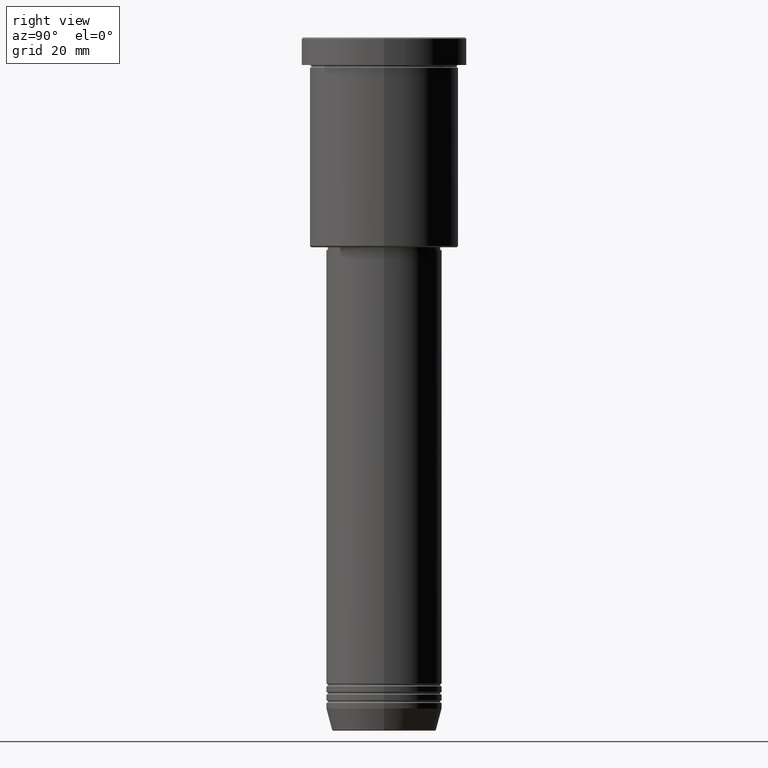
[diagram: clean part render]
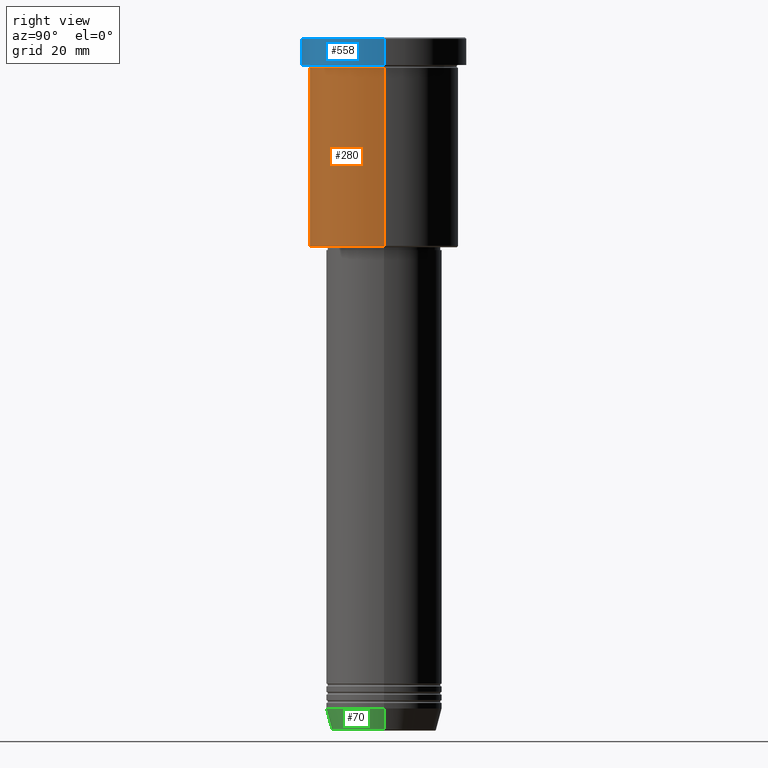
[diagram: same view with three faces highlighted in distinct colors, each labeled with its STEP entity id]
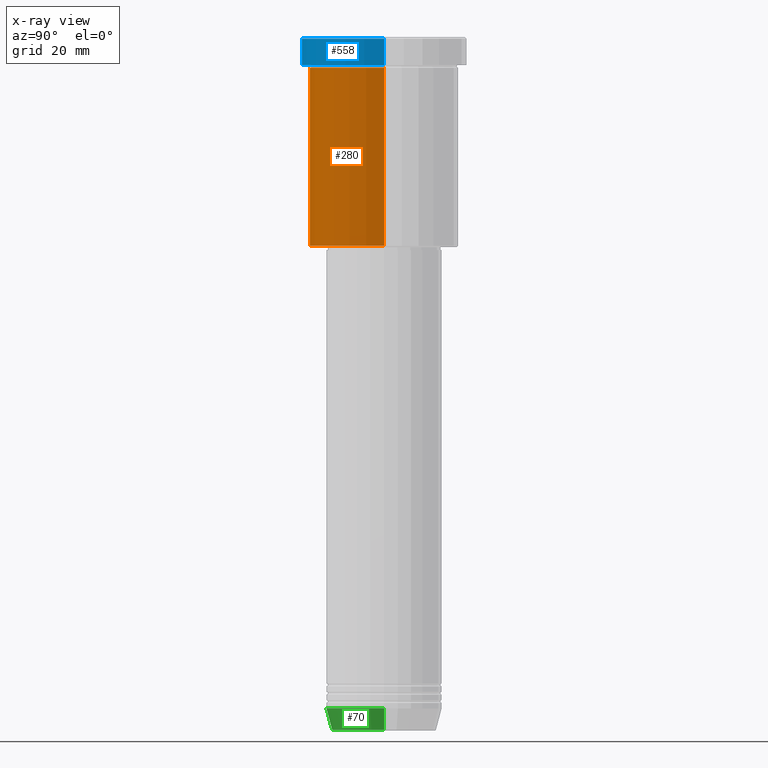
[diagram: x-ray of the same camera — body ghosted, the three highlighted faces saturated]
A machine part, right view with three faces highlighted in distinct colors.
The next image is the same camera in x-ray (body ghosted, the three faces saturated) — at least one of them is partly hidden behind the body in this view.
Their STEP definitions:

[orange] entity #280 — the highlighted cylindrical surface (partial cylindrical patch) has radius 27 mm, axis along (-0, -0, 1).
#3 = CARTESIAN_POINT ( 'NONE',  ( 0.000000000000000000, 0.000000000000000000, -10.99999999999999289 ) ) ;
#6 = DIRECTION ( 'NONE',  ( -0.000000000000000000, -0.000000000000000000, 1.000000000000000000 ) ) ;
#21 = VERTEX_POINT ( 'NONE', #787 ) ;
#26 = DIRECTION ( 'NONE',  ( -0.000000000000000000, -0.000000000000000000, 1.000000000000000000 ) ) ;
#69 = VERTEX_POINT ( 'NONE', #887 ) ;
#84 = LINE ( 'NONE', #997, #155 ) ;
#155 = VECTOR ( 'NONE', #256, 1000.000000000000000 ) ;
#172 = CARTESIAN_POINT ( 'NONE',  ( 27.00000000000000355, 0.000000000000000000, 0.000000000000000000 ) ) ;
#199 = CIRCLE ( 'NONE', #545, 27.00000000000000355 ) ;
#211 = ORIENTED_EDGE ( 'NONE', *, *, #956, .F. ) ;
#256 = DIRECTION ( 'NONE',  ( -0.000000000000000000, -0.000000000000000000, 1.000000000000000000 ) ) ;
#280 = ADVANCED_FACE ( 'NONE', ( #844 ), #1116, .T. ) ;
#285 = DIRECTION ( 'NONE',  ( -0.000000000000000000, -0.000000000000000000, 1.000000000000000000 ) ) ;
#298 = EDGE_CURVE ( 'NONE', #21, #69, #732, .T. ) ;
#301 = CARTESIAN_POINT ( 'NONE',  ( 0.000000000000000000, 0.000000000000000000, 0.000000000000000000 ) ) ;
#386 = CARTESIAN_POINT ( 'NONE',  ( 0.000000000000000000, 0.000000000000000000, -75.50000000000008527 ) ) ;
#448 = DIRECTION ( 'NONE',  ( -0.000000000000000000, -0.000000000000000000, 1.000000000000000000 ) ) ;
#462 = CARTESIAN_POINT ( 'NONE',  ( 27.00000000000000355, 0.000000000000000000, -10.99999999999999289 ) ) ;
#522 = AXIS2_PLACEMENT_3D ( 'NONE', #386, #26, #1018 ) ;
#545 = AXIS2_PLACEMENT_3D ( 'NONE', #3, #285, #659 ) ;
#596 = ORIENTED_EDGE ( 'NONE', *, *, #298, .T. ) ;
#641 = ORIENTED_EDGE ( 'NONE', *, *, #820, .T. ) ;
#642 = LINE ( 'NONE', #172, #907 ) ;
#659 = DIRECTION ( 'NONE',  ( 1.000000000000000000, 0.000000000000000000, 0.000000000000000000 ) ) ;
#670 = VERTEX_POINT ( 'NONE', #761 ) ;
#732 = CIRCLE ( 'NONE', #522, 27.00000000000000355 ) ;
#746 = ORIENTED_EDGE ( 'NONE', *, *, #856, .F. ) ;
#761 = CARTESIAN_POINT ( 'NONE',  ( -27.00000000000000355, 3.306546357697854128E-15, -10.99999999999999289 ) ) ;
#787 = CARTESIAN_POINT ( 'NONE',  ( -27.00000000000000355, 3.306546357697854128E-15, -75.50000000000008527 ) ) ;
#820 = EDGE_CURVE ( 'NONE', #69, #874, #642, .T. ) ;
#844 = FACE_OUTER_BOUND ( 'NONE', #930, .T. ) ;
#856 = EDGE_CURVE ( 'NONE', #21, #670, #84, .T. ) ;
#874 = VERTEX_POINT ( 'NONE', #462 ) ;
#887 = CARTESIAN_POINT ( 'NONE',  ( 27.00000000000000355, 0.000000000000000000, -75.50000000000008527 ) ) ;
#907 = VECTOR ( 'NONE', #448, 1000.000000000000000 ) ;
#930 = EDGE_LOOP ( 'NONE', ( #746, #596, #641, #211 ) ) ;
#956 = EDGE_CURVE ( 'NONE', #670, #874, #199, .T. ) ;
#980 = AXIS2_PLACEMENT_3D ( 'NONE', #301, #6, #1095 ) ;
#997 = CARTESIAN_POINT ( 'NONE',  ( -27.00000000000000355, 3.306546357697854128E-15, 0.000000000000000000 ) ) ;
#1018 = DIRECTION ( 'NONE',  ( -1.000000000000000000, 0.000000000000000000, 0.000000000000000000 ) ) ;
#1095 = DIRECTION ( 'NONE',  ( 1.000000000000000000, 0.000000000000000000, 0.000000000000000000 ) ) ;
#1116 = CYLINDRICAL_SURFACE ( 'NONE', #980, 27.00000000000000355 ) ;

[blue] entity #558 — the highlighted cylindrical surface (partial cylindrical patch) has radius 30 mm, axis along (-0, -0, 1).
#31 = CARTESIAN_POINT ( 'NONE',  ( 30.00000000000000000, 0.000000000000000000, -9.999999999999992895 ) ) ;
#53 = LINE ( 'NONE', #1151, #660 ) ;
#78 = VECTOR ( 'NONE', #210, 1000.000000000000000 ) ;
#79 = VERTEX_POINT ( 'NONE', #867 ) ;
#86 = VERTEX_POINT ( 'NONE', #974 ) ;
#130 = CIRCLE ( 'NONE', #287, 30.00000000000000000 ) ;
#139 = EDGE_CURVE ( 'NONE', #79, #381, #130, .T. ) ;
#154 = DIRECTION ( 'NONE',  ( 1.000000000000000000, 0.000000000000000000, 0.000000000000000000 ) ) ;
#174 = DIRECTION ( 'NONE',  ( 1.000000000000000000, 0.000000000000000000, 0.000000000000000000 ) ) ;
#179 = EDGE_CURVE ( 'NONE', #952, #86, #562, .T. ) ;
#210 = DIRECTION ( 'NONE',  ( -0.000000000000000000, -0.000000000000000000, 1.000000000000000000 ) ) ;
#287 = AXIS2_PLACEMENT_3D ( 'NONE', #724, #824, #174 ) ;
#290 = AXIS2_PLACEMENT_3D ( 'NONE', #638, #625, #530 ) ;
#314 = EDGE_CURVE ( 'NONE', #381, #952, #1098, .T. ) ;
#331 = AXIS2_PLACEMENT_3D ( 'NONE', #452, #1000, #154 ) ;
#381 = VERTEX_POINT ( 'NONE', #31 ) ;
#452 = CARTESIAN_POINT ( 'NONE',  ( 0.000000000000000000, 0.000000000000000000, -0.5000000000000073275 ) ) ;
#530 = DIRECTION ( 'NONE',  ( 1.000000000000000000, 0.000000000000000000, 0.000000000000000000 ) ) ;
#539 = CYLINDRICAL_SURFACE ( 'NONE', #290, 30.00000000000000000 ) ;
#558 = ADVANCED_FACE ( 'NONE', ( #1073 ), #539, .T. ) ;
#562 = CIRCLE ( 'NONE', #331, 30.00000000000000000 ) ;
#582 = ORIENTED_EDGE ( 'NONE', *, *, #314, .T. ) ;
#625 = DIRECTION ( 'NONE',  ( -0.000000000000000000, -0.000000000000000000, 1.000000000000000000 ) ) ;
#629 = DIRECTION ( 'NONE',  ( -0.000000000000000000, -0.000000000000000000, 1.000000000000000000 ) ) ;
#638 = CARTESIAN_POINT ( 'NONE',  ( 0.000000000000000000, 0.000000000000000000, 0.000000000000000000 ) ) ;
#660 = VECTOR ( 'NONE', #629, 1000.000000000000000 ) ;
#675 = CARTESIAN_POINT ( 'NONE',  ( 30.00000000000000000, 0.000000000000000000, 0.000000000000000000 ) ) ;
#702 = ORIENTED_EDGE ( 'NONE', *, *, #179, .T. ) ;
#724 = CARTESIAN_POINT ( 'NONE',  ( 0.000000000000000000, 0.000000000000000000, -9.999999999999992895 ) ) ;
#731 = CARTESIAN_POINT ( 'NONE',  ( 30.00000000000000000, 0.000000000000000000, -0.5000000000000073275 ) ) ;
#817 = ORIENTED_EDGE ( 'NONE', *, *, #139, .T. ) ;
#824 = DIRECTION ( 'NONE',  ( -0.000000000000000000, -0.000000000000000000, 1.000000000000000000 ) ) ;
#867 = CARTESIAN_POINT ( 'NONE',  ( -30.00000000000000000, 3.673940397442059178E-15, -9.999999999999992895 ) ) ;
#952 = VERTEX_POINT ( 'NONE', #731 ) ;
#974 = CARTESIAN_POINT ( 'NONE',  ( -30.00000000000000000, 3.673940397442059178E-15, -0.5000000000000073275 ) ) ;
#1000 = DIRECTION ( 'NONE',  ( 0.000000000000000000, 0.000000000000000000, -1.000000000000000000 ) ) ;
#1069 = EDGE_CURVE ( 'NONE', #79, #86, #53, .T. ) ;
#1073 = FACE_OUTER_BOUND ( 'NONE', #1080, .T. ) ;
#1080 = EDGE_LOOP ( 'NONE', ( #1118, #817, #582, #702 ) ) ;
#1098 = LINE ( 'NONE', #675, #78 ) ;
#1118 = ORIENTED_EDGE ( 'NONE', *, *, #1069, .F. ) ;
#1151 = CARTESIAN_POINT ( 'NONE',  ( -30.00000000000000000, 3.673940397442059178E-15, 0.000000000000000000 ) ) ;

[green] entity #70 — the highlighted conical surface has half-angle 15 deg.
#43 = CONICAL_SURFACE ( 'NONE', #82, 21.00000000000000000, 0.2617993877991500740 ) ;
#45 = CARTESIAN_POINT ( 'NONE',  ( -18.95570587970606624, 2.446581365662756125E-15, -250.6294095225512422 ) ) ;
#52 = EDGE_CURVE ( 'NONE', #1025, #651, #717, .T. ) ;
#70 = ADVANCED_FACE ( 'NONE', ( #137 ), #43, .T. ) ;
#82 = AXIS2_PLACEMENT_3D ( 'NONE', #342, #1052, #953 ) ;
#137 = FACE_OUTER_BOUND ( 'NONE', #725, .T. ) ;
#176 = VERTEX_POINT ( 'NONE', #1173 ) ;
#239 = CARTESIAN_POINT ( 'NONE',  ( 21.00000000000000000, 0.000000000000000000, -243.0000000000000284 ) ) ;
#260 = ORIENTED_EDGE ( 'NONE', *, *, #1142, .F. ) ;
#325 = ORIENTED_EDGE ( 'NONE', *, *, #52, .T. ) ;
#337 = ORIENTED_EDGE ( 'NONE', *, *, #656, .T. ) ;
#342 = CARTESIAN_POINT ( 'NONE',  ( 0.000000000000000000, 0.000000000000000000, -243.0000000000000284 ) ) ;
#416 = DIRECTION ( 'NONE',  ( -0.000000000000000000, -0.000000000000000000, 1.000000000000000000 ) ) ;
#579 = DIRECTION ( 'NONE',  ( -0.000000000000000000, -0.000000000000000000, 1.000000000000000000 ) ) ;
#614 = CARTESIAN_POINT ( 'NONE',  ( 18.95570587970606624, 0.000000000000000000, -250.6294095225512422 ) ) ;
#618 = DIRECTION ( 'NONE',  ( 0.2588190451025213501, 0.000000000000000000, 0.9659258262890680902 ) ) ;
#651 = VERTEX_POINT ( 'NONE', #614 ) ;
#656 = EDGE_CURVE ( 'NONE', #651, #176, #788, .T. ) ;
#661 = DIRECTION ( 'NONE',  ( 1.000000000000000000, 0.000000000000000000, 0.000000000000000000 ) ) ;
#694 = EDGE_CURVE ( 'NONE', #1149, #176, #1082, .T. ) ;
#701 = DIRECTION ( 'NONE',  ( 1.000000000000000000, 0.000000000000000000, 0.000000000000000000 ) ) ;
#712 = ORIENTED_EDGE ( 'NONE', *, *, #694, .F. ) ;
#713 = VECTOR ( 'NONE', #967, 1000.000000000000000 ) ;
#716 = VECTOR ( 'NONE', #618, 1000.000000000000000 ) ;
#717 = CIRCLE ( 'NONE', #1085, 18.95570587970606624 ) ;
#725 = EDGE_LOOP ( 'NONE', ( #260, #325, #337, #712 ) ) ;
#788 = LINE ( 'NONE', #239, #716 ) ;
#855 = AXIS2_PLACEMENT_3D ( 'NONE', #1106, #579, #661 ) ;
#953 = DIRECTION ( 'NONE',  ( 1.000000000000000000, 0.000000000000000000, 0.000000000000000000 ) ) ;
#967 = DIRECTION ( 'NONE',  ( -0.2588190451025213501, 3.169619151431772337E-17, 0.9659258262890680902 ) ) ;
#1025 = VERTEX_POINT ( 'NONE', #45 ) ;
#1052 = DIRECTION ( 'NONE',  ( -0.000000000000000000, -0.000000000000000000, 1.000000000000000000 ) ) ;
#1058 = CARTESIAN_POINT ( 'NONE',  ( -21.00000000000000000, 2.571758278209441661E-15, -243.0000000000000284 ) ) ;
#1082 = CIRCLE ( 'NONE', #855, 21.00000000000000000 ) ;
#1085 = AXIS2_PLACEMENT_3D ( 'NONE', #1126, #416, #701 ) ;
#1106 = CARTESIAN_POINT ( 'NONE',  ( 0.000000000000000000, 0.000000000000000000, -243.0000000000000284 ) ) ;
#1126 = CARTESIAN_POINT ( 'NONE',  ( 0.000000000000000000, 0.000000000000000000, -250.6294095225512422 ) ) ;
#1142 = EDGE_CURVE ( 'NONE', #1025, #1149, #1171, .T. ) ;
#1149 = VERTEX_POINT ( 'NONE', #1167 ) ;
#1167 = CARTESIAN_POINT ( 'NONE',  ( -21.00000000000000000, 2.571758278209441661E-15, -243.0000000000000284 ) ) ;
#1171 = LINE ( 'NONE', #1058, #713 ) ;
#1173 = CARTESIAN_POINT ( 'NONE',  ( 21.00000000000000000, 0.000000000000000000, -243.0000000000000284 ) ) ;